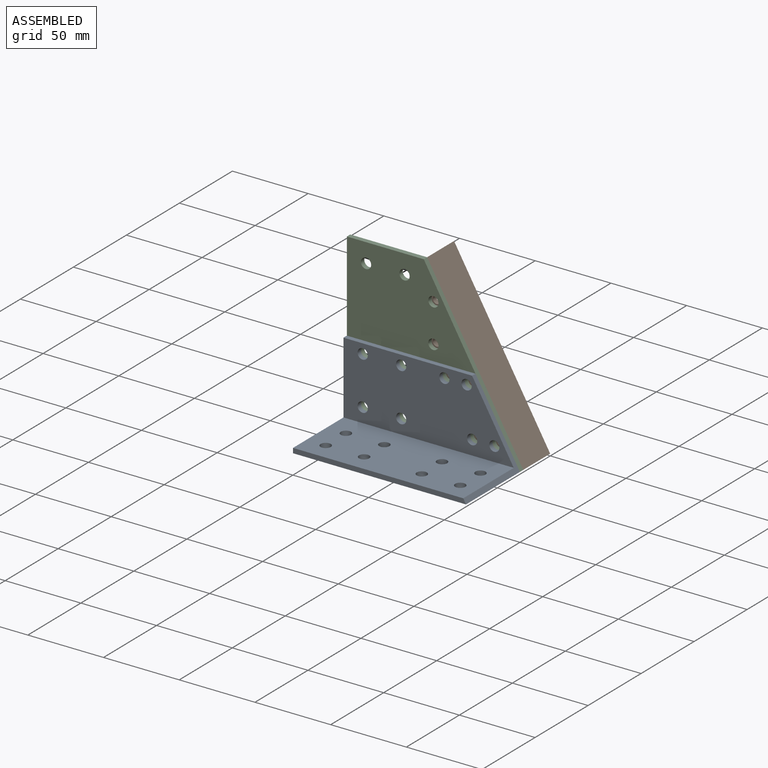
[diagram: assembled view]
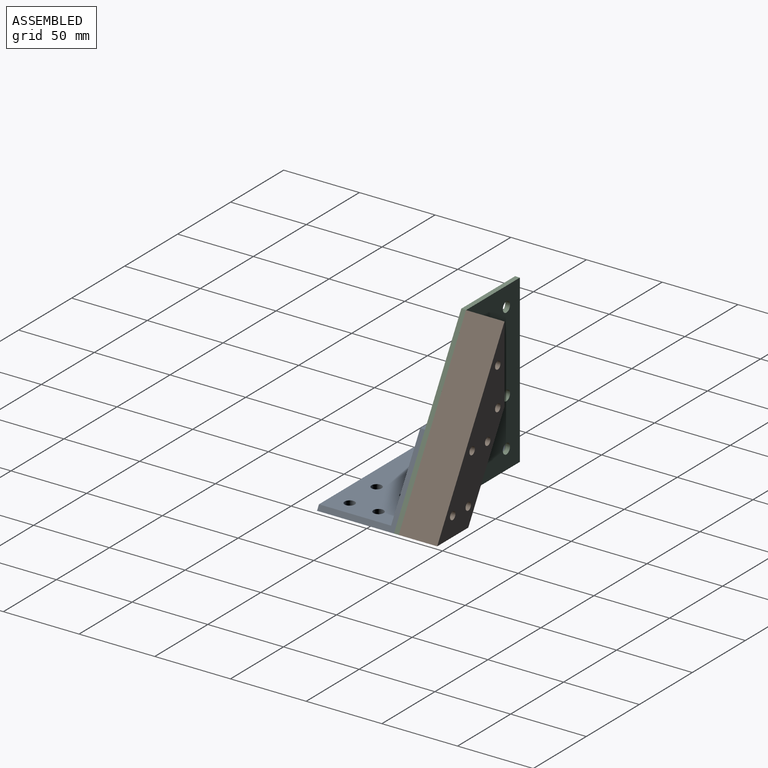
[diagram: assembled view, second angle]
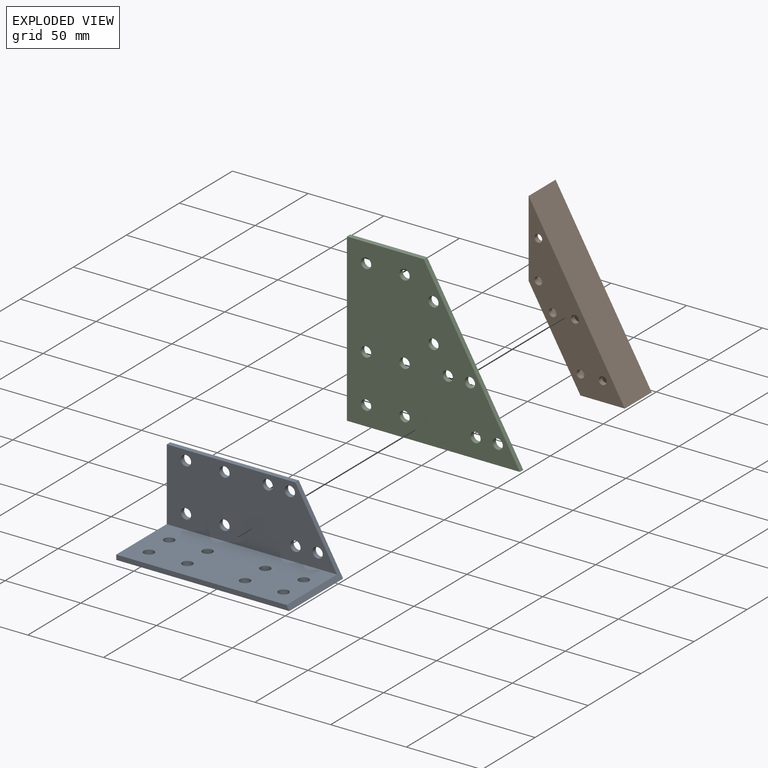
[diagram: exploded view]
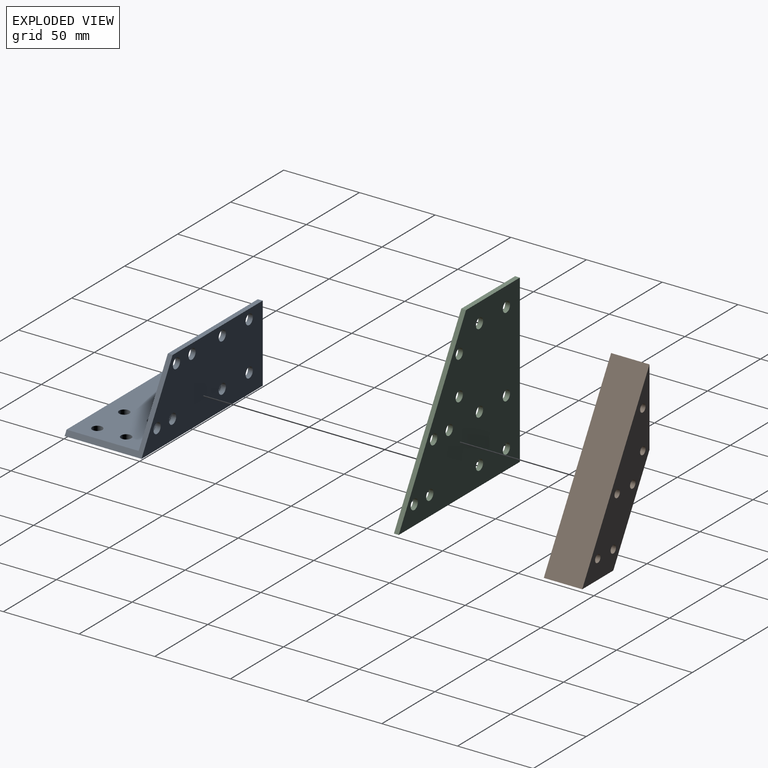
[diagram: exploded view, second angle]
ASSEMBLY  parts=3 mates=3
PART A: 24 faces, bbox 114.3x50.8x50.8 mm
  f0: plane 112.47x47.63mm, normal (0,-1,0), area 4414.7mm2, adj f1,f3,f4,f6,f8,f9,f10,f11
  f1: plane 50.8x50.8mm, normal (-1,0,0), area 312.5mm2, adj f0,f2,f4,f5,f6,f7
  f2: plane 114.3x50.8mm, normal (0,0,-1), area 5519.6mm2, adj f1,f3,f5,f7,f16,f17,f18,f19
  f3: plane 50.8x50.8mm, normal (0.87,0,0.5), area 360.8mm2, adj f0,f2,f4,f5,f6,f7
  f4: plane 84.97x3.18mm, normal (0,0,1), area 269.8mm2, adj f0,f1,f3,f5
  f5: plane 114.3x50.8mm, normal (0,1,0), area 4774.7mm2, adj f1,f2,f3,f4,f8,f9,f10,f11
  f6: plane 112.47x47.63mm, normal (0,0,1), area 5069.4mm2, adj f0,f1,f3,f7,f16,f17,f18,f19
  f7: plane 114.3x3.18mm, normal (0,-1,0), area 360mm2, adj f1,f2,f3,f6
  f8: cylinder r=3.38mm len=6.76mm, axis (0,1,0), area 67.4mm2, adj f0,f5
  f9: cylinder r=3.38mm len=6.76mm, axis (0,1,0), area 67.4mm2, adj f0,f5
  f10: cylinder r=3.38mm len=6.76mm, axis (0,1,0), area 67.4mm2, adj f0,f5
  f11: cylinder r=3.38mm len=6.76mm, axis (0,1,0), area 67.4mm2, adj f0,f5
  f12: cylinder r=3.38mm len=6.76mm, axis (0,1,0), area 67.4mm2, adj f0,f5
  f13: cylinder r=3.38mm len=6.76mm, axis (0,1,0), area 67.4mm2, adj f0,f5
  f14: cylinder r=3.38mm len=6.76mm, axis (0,1,0), area 67.4mm2, adj f0,f5
  f15: cylinder r=3.38mm len=6.76mm, axis (0,1,0), area 67.4mm2, adj f0,f5
  f16: cylinder r=3.38mm len=6.76mm, axis (0,0,-1), area 67.4mm2, adj f2,f6
  f17: cylinder r=3.38mm len=6.76mm, axis (0,0,-1), area 67.4mm2, adj f2,f6
  f18: cylinder r=3.38mm len=6.76mm, axis (0,0,-1), area 67.4mm2, adj f2,f6
  f19: cylinder r=3.38mm len=6.76mm, axis (0,0,-1), area 67.4mm2, adj f2,f6
  f20: cylinder r=3.38mm len=6.76mm, axis (0,0,-1), area 67.4mm2, adj f2,f6
  f21: cylinder r=3.38mm len=6.76mm, axis (0,0,-1), area 67.4mm2, adj f2,f6
  f22: cylinder r=3.38mm len=6.76mm, axis (0,0,-1), area 67.4mm2, adj f2,f6
  f23: cylinder r=3.38mm len=6.76mm, axis (0,0,-1), area 67.4mm2, adj f2,f6
PART B: 22 faces, bbox 25.4x127x25.4 mm
  f0: plane 119.67x19.05mm, normal (0,0,-1), area 1737.8mm2, adj f1,f3,f4,f5,f10,f11,f12,f13
  f1: plane 119.67x19.05mm, normal (1,0,0), area 2279.7mm2, adj f0,f2,f4,f5
  f2: plane 119.67x19.05mm, normal (0,0,1), area 1737.8mm2, adj f1,f3,f4,f5,f16,f17,f18,f19
  f3: plane 75.67x19.05mm, normal (-1,0,0), area 1441.6mm2, adj f0,f2,f4,f5
  f4: plane 43.99x25.4mm, normal (0.87,-0.5,0), area 564.5mm2, adj f0,f1,f2,f3,f6,f7,f8,f9
  f5: plane 25.4x25.4mm, normal (0.5,0.87,0), area 325.9mm2, adj f0,f1,f2,f3,f6,f7,f8,f9
  f6: plane 127x25.4mm, normal (0,0,-1), area 2358mm2, adj f4,f5,f7,f9,f16,f17,f18,f19
  f7: plane 68.34x25.4mm, normal (1,0,0), area 1735.9mm2, adj f4,f5,f6,f8
  f8: plane 127x25.4mm, normal (0,0,1), area 2358mm2, adj f4,f5,f7,f9,f10,f11,f12,f13
  f9: plane 127x25.4mm, normal (-1,0,0), area 3225.8mm2, adj f4,f5,f6,f8
  f10: cylinder r=2.55mm len=5.11mm, axis (0,0,1), area 50.9mm2, adj f0,f8
  f11: cylinder r=2.55mm len=5.11mm, axis (0,0,1), area 50.9mm2, adj f0,f8
  f12: cylinder r=2.55mm len=5.11mm, axis (0,0,1), area 50.9mm2, adj f0,f8
  f13: cylinder r=2.55mm len=5.11mm, axis (0,0,1), area 50.9mm2, adj f0,f8
  f14: cylinder r=2.55mm len=5.11mm, axis (0,0,1), area 50.9mm2, adj f0,f8
  f15: cylinder r=2.55mm len=5.11mm, axis (0,0,1), area 50.9mm2, adj f0,f8
  f16: cylinder r=2.55mm len=5.11mm, axis (0,0,1), area 50.9mm2, adj f2,f6
  f17: cylinder r=2.55mm len=5.11mm, axis (0,0,1), area 50.9mm2, adj f2,f6
  f18: cylinder r=2.55mm len=5.11mm, axis (0,0,1), area 50.9mm2, adj f2,f6
  f19: cylinder r=2.55mm len=5.11mm, axis (0,0,1), area 50.9mm2, adj f2,f6
  f20: cylinder r=2.55mm len=5.11mm, axis (0,0,1), area 50.9mm2, adj f2,f6
  f21: cylinder r=2.55mm len=5.11mm, axis (0,0,1), area 50.9mm2, adj f2,f6
PART C: 18 faces, bbox 114.3x3.2x110 mm
  f0: plane 109.99x63.5mm, normal (0.87,0,0.5), area 403.2mm2, adj f1,f3,f4,f5
  f1: plane 50.8x3.18mm, normal (0,0,1), area 161.3mm2, adj f0,f2,f4,f5
  f2: plane 109.99x3.18mm, normal (-1,0,0), area 349.2mm2, adj f1,f3,f4,f5
  f3: plane 114.3x3.18mm, normal (0,0,-1), area 362.9mm2, adj f0,f2,f4,f5
  f4: plane 114.3x109.99mm, normal (0,-1,0), area 8649mm2, adj f0,f1,f2,f3,f6,f7,f8,f9
  f5: plane 114.3x109.99mm, normal (0,1,0), area 8649mm2, adj f0,f1,f2,f3,f6,f7,f8,f9
  f6: cylinder r=3.38mm len=6.76mm, axis (0,1,0), area 67.4mm2, adj f4,f5
  f7: cylinder r=3.38mm len=6.76mm, axis (0,1,0), area 67.4mm2, adj f4,f5
  f8: cylinder r=3.38mm len=6.76mm, axis (0,1,0), area 67.4mm2, adj f4,f5
  f9: cylinder r=3.38mm len=6.76mm, axis (0,1,0), area 67.4mm2, adj f4,f5
  f10: cylinder r=3.38mm len=6.76mm, axis (0,1,0), area 67.4mm2, adj f4,f5
  f11: cylinder r=3.38mm len=6.76mm, axis (0,1,0), area 67.4mm2, adj f4,f5
  f12: cylinder r=3.38mm len=6.76mm, axis (0,1,0), area 67.4mm2, adj f4,f5
  f13: cylinder r=3.38mm len=6.76mm, axis (0,1,0), area 67.4mm2, adj f4,f5
  f14: cylinder r=3.38mm len=6.76mm, axis (0,1,0), area 67.4mm2, adj f4,f5
  f15: cylinder r=3.38mm len=6.76mm, axis (0,1,0), area 67.4mm2, adj f4,f5
  f16: cylinder r=3.38mm len=6.76mm, axis (0,1,0), area 67.4mm2, adj f4,f5
  f17: cylinder r=3.38mm len=6.76mm, axis (0,1,0), area 67.4mm2, adj f4,f5
PLACE A t=(-12.7,19.05,0)mm
PLACE B rot(axis=(0.19,0.69,-0.69),158.9deg) t=(101.6,47.62,0)mm
PLACE C t=(38.1,22.22,-85.72)mm
MATE revolute C.f8 <-> B.f15  axis (0,1,0) through (44.45,22.22,86.29)mm
MATE revolute C.f17 <-> B.f13  axis (0,1,0) through (86.94,22.22,12.7)mm
MATE fastened A.f10 <-> C.f11  axis (0,1,0) through (0,19.05,12.7)mm
